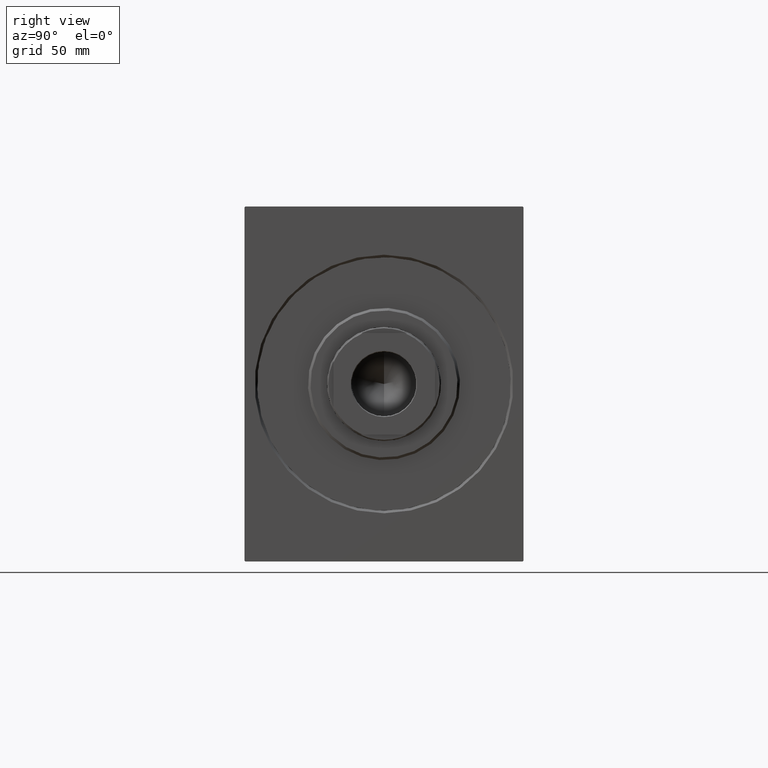
[diagram: clean part render]
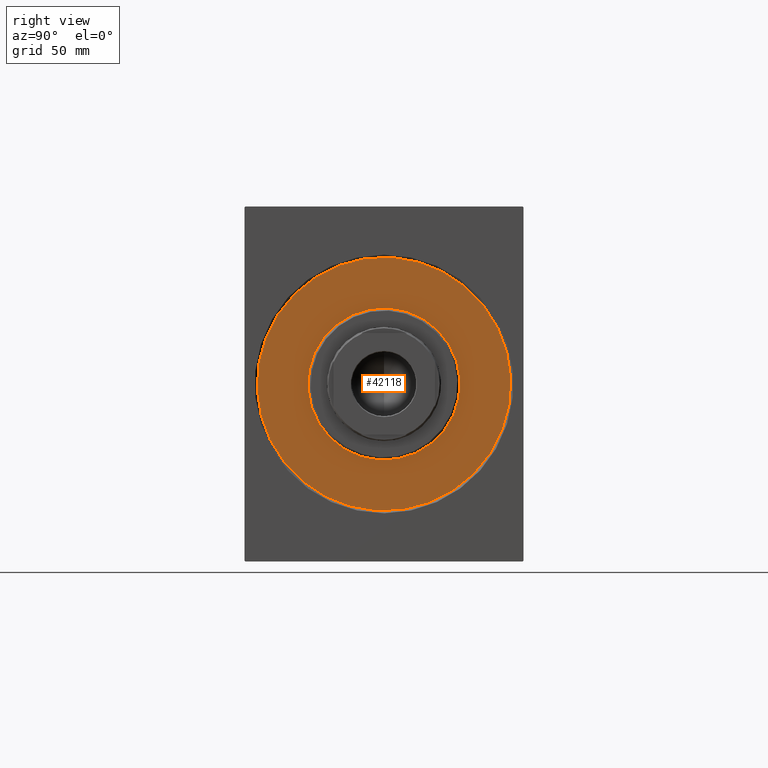
[diagram: same view with one face highlighted and labeled with its STEP entity id]
A machine part, right view. The second image highlights one B-rep face of the part: STEP entity #42118.
In plain terms, the highlighted planar face has unit normal (-1, 0, 0).
Its self-contained STEP definition (entity closure, byte-faithful):
#267 = AXIS2_PLACEMENT_3D ( 'NONE', #15532, #35921, #29707 ) ;
#1432 = VERTEX_POINT ( 'NONE', #16586 ) ;
#1685 = CIRCLE ( 'NONE', #267, 50.00000000000000000 ) ;
#2087 = ORIENTED_EDGE ( 'NONE', *, *, #39951, .F. ) ;
#2340 = EDGE_CURVE ( 'NONE', #10624, #14294, #18036, .T. ) ;
#4363 = ORIENTED_EDGE ( 'NONE', *, *, #10160, .F. ) ;
#4383 = DIRECTION ( 'NONE',  ( 1.000000000000000000, -0.000000000000000000, 0.000000000000000000 ) ) ;
#4660 = EDGE_LOOP ( 'NONE', ( #4363, #2087 ) ) ;
#5333 = AXIS2_PLACEMENT_3D ( 'NONE', #8275, #31554, #34653 ) ;
#5505 = FACE_BOUND ( 'NONE', #4660, .T. ) ;
#7688 = ORIENTED_EDGE ( 'NONE', *, *, #2340, .F. ) ;
#8275 = CARTESIAN_POINT ( 'NONE',  ( 0.000000000000000000, 0.000000000000000000, 0.000000000000000000 ) ) ;
#10160 = EDGE_CURVE ( 'NONE', #1432, #14857, #38075, .T. ) ;
#10624 = VERTEX_POINT ( 'NONE', #43160 ) ;
#11117 = AXIS2_PLACEMENT_3D ( 'NONE', #21644, #4383, #14573 ) ;
#11857 = AXIS2_PLACEMENT_3D ( 'NONE', #17066, #17726, #23710 ) ;
#14294 = VERTEX_POINT ( 'NONE', #41102 ) ;
#14573 = DIRECTION ( 'NONE',  ( 0.000000000000000000, 0.000000000000000000, -1.000000000000000000 ) ) ;
#14857 = VERTEX_POINT ( 'NONE', #36784 ) ;
#15532 = CARTESIAN_POINT ( 'NONE',  ( 0.000000000000000000, 0.000000000000000000, 0.000000000000000000 ) ) ;
#15676 = CARTESIAN_POINT ( 'NONE',  ( 0.000000000000000000, 0.000000000000000000, 0.000000000000000000 ) ) ;
#15899 = DIRECTION ( 'NONE',  ( 0.000000000000000000, 0.000000000000000000, 1.000000000000000000 ) ) ;
#16586 = CARTESIAN_POINT ( 'NONE',  ( 0.000000000000000000, 0.000000000000000000, 30.00000000000000000 ) ) ;
#17066 = CARTESIAN_POINT ( 'NONE',  ( 0.000000000000000000, 0.000000000000000000, 0.000000000000000000 ) ) ;
#17394 = EDGE_LOOP ( 'NONE', ( #26277, #7688 ) ) ;
#17726 = DIRECTION ( 'NONE',  ( 1.000000000000000000, -0.000000000000000000, 0.000000000000000000 ) ) ;
#18036 = CIRCLE ( 'NONE', #5333, 50.00000000000000000 ) ;
#18920 = AXIS2_PLACEMENT_3D ( 'NONE', #15676, #29191, #15899 ) ;
#21644 = CARTESIAN_POINT ( 'NONE',  ( 0.000000000000000000, 0.000000000000000000, 0.000000000000000000 ) ) ;
#23710 = DIRECTION ( 'NONE',  ( 0.000000000000000000, 0.000000000000000000, -1.000000000000000000 ) ) ;
#26277 = ORIENTED_EDGE ( 'NONE', *, *, #29548, .F. ) ;
#29191 = DIRECTION ( 'NONE',  ( -1.000000000000000000, 0.000000000000000000, 0.000000000000000000 ) ) ;
#29548 = EDGE_CURVE ( 'NONE', #14294, #10624, #1685, .T. ) ;
#29707 = DIRECTION ( 'NONE',  ( 0.000000000000000000, 0.000000000000000000, 1.000000000000000000 ) ) ;
#31554 = DIRECTION ( 'NONE',  ( -1.000000000000000000, 0.000000000000000000, 0.000000000000000000 ) ) ;
#32318 = PLANE ( 'NONE',  #18920 ) ;
#33050 = CIRCLE ( 'NONE', #11117, 30.00000000000000000 ) ;
#34653 = DIRECTION ( 'NONE',  ( 0.000000000000000000, 0.000000000000000000, 1.000000000000000000 ) ) ;
#35921 = DIRECTION ( 'NONE',  ( -1.000000000000000000, 0.000000000000000000, 0.000000000000000000 ) ) ;
#36073 = FACE_OUTER_BOUND ( 'NONE', #17394, .T. ) ;
#36784 = CARTESIAN_POINT ( 'NONE',  ( 0.000000000000000000, 3.673940397442059178E-15, -30.00000000000000000 ) ) ;
#38075 = CIRCLE ( 'NONE', #11857, 30.00000000000000000 ) ;
#39951 = EDGE_CURVE ( 'NONE', #14857, #1432, #33050, .T. ) ;
#41102 = CARTESIAN_POINT ( 'NONE',  ( 0.000000000000000000, 0.000000000000000000, -50.00000000000000000 ) ) ;
#42118 = ADVANCED_FACE ( 'NONE', ( #5505, #36073 ), #32318, .F. ) ;
#43160 = CARTESIAN_POINT ( 'NONE',  ( 0.000000000000000000, 6.123233995736766085E-15, 50.00000000000000000 ) ) ;